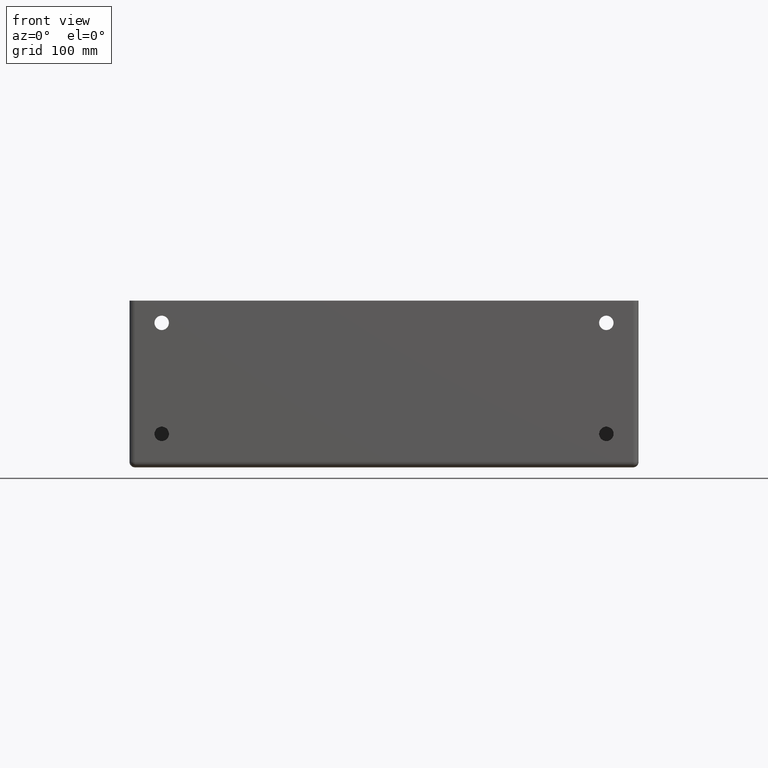
[diagram: clean part render]
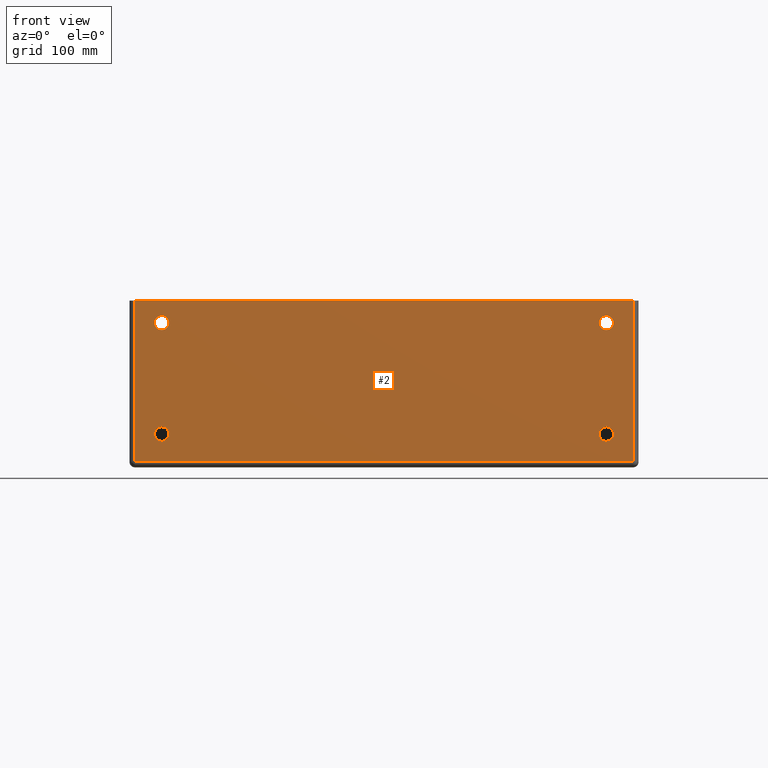
[diagram: same view with one face highlighted and labeled with its STEP entity id]
A machine part, front view. The second image highlights one B-rep face of the part: STEP entity #2.
In plain terms, the highlighted planar face has unit normal (-0, 1, 0).
Its self-contained STEP definition (entity closure, byte-faithful):
#2 = ADVANCED_FACE ( 'NONE', ( #1675, #1679, #1676, #1428, #1677 ), #1774, .F. ) ;
#75 = EDGE_CURVE ( 'NONE', #1847, #1846, #829, .T. ) ;
#76 = EDGE_CURVE ( 'NONE', #1846, #1845, #831, .T. ) ;
#77 = EDGE_CURVE ( 'NONE', #1845, #1813, #835, .T. ) ;
#78 = EDGE_CURVE ( 'NONE', #1813, #1847, #837, .T. ) ;
#90 = AXIS2_PLACEMENT_3D ( 'NONE', #1145, #1146, #1147 ) ;
#97 = AXIS2_PLACEMENT_3D ( 'NONE', #686, #687, #688 ) ;
#98 = AXIS2_PLACEMENT_3D ( 'NONE', #689, #690, #691 ) ;
#99 = AXIS2_PLACEMENT_3D ( 'NONE', #694, #695, #696 ) ;
#100 = AXIS2_PLACEMENT_3D ( 'NONE', #697, #698, #699 ) ;
#102 = AXIS2_PLACEMENT_3D ( 'NONE', #707, #708, #709 ) ;
#305 = EDGE_CURVE ( 'NONE', #1850, #1863, #922, .T. ) ;
#357 = CARTESIAN_POINT ( 'NONE',  ( -223.9999999999998900, -1.836909530733565600E-014, 150.0000000000000000 ) ) ;
#378 = CARTESIAN_POINT ( 'NONE',  ( 200.0000000000000000, -1.512388846970640600E-014, 123.5000000000003700 ) ) ;
#385 = CARTESIAN_POINT ( 'NONE',  ( -200.0000000000000000, -4.469813191451470300E-015, 36.49999999999829500 ) ) ;
#392 = CARTESIAN_POINT ( 'NONE',  ( 224.0000000000000000, -1.836909530733565600E-014, 150.0000000000000000 ) ) ;
#393 = CARTESIAN_POINT ( 'NONE',  ( 224.0000000000000000, -6.123031769111885300E-016, 4.999999999999998200 ) ) ;
#394 = CARTESIAN_POINT ( 'NONE',  ( -224.0000000000000000, -6.123031769111885300E-016, 4.999999999999998200 ) ) ;
#397 = CARTESIAN_POINT ( 'NONE',  ( -200.0000000000003400, -1.671587672967511500E-014, 136.4999999999972400 ) ) ;
#399 = CARTESIAN_POINT ( 'NONE',  ( -200.0000000000000000, -2.877824931482484000E-015, 23.49999999999915400 ) ) ;
#410 = CARTESIAN_POINT ( 'NONE',  ( -200.0000000000003400, -1.512388846970602200E-014, 123.4999999999972100 ) ) ;
#416 = CARTESIAN_POINT ( 'NONE',  ( 200.0000000000000000, -1.671587672967541500E-014, 136.4999999999997200 ) ) ;
#418 = CARTESIAN_POINT ( 'NONE',  ( 200.0000000000000000, -4.469813191451678600E-015, 36.50000000000002100 ) ) ;
#419 = CARTESIAN_POINT ( 'NONE',  ( 200.0000000000000000, -2.877824931482585000E-015, 23.49999999999998200 ) ) ;
#464 = EDGE_CURVE ( 'NONE', #1871, #1872, #929, .T. ) ;
#494 = EDGE_CURVE ( 'NONE', #1838, #1852, #972, .T. ) ;
#523 = EDGE_CURVE ( 'NONE', #1863, #1850, #1031, .T. ) ;
#524 = EDGE_CURVE ( 'NONE', #1831, #1869, #1032, .T. ) ;
#525 = EDGE_CURVE ( 'NONE', #1852, #1838, #1033, .T. ) ;
#526 = EDGE_CURVE ( 'NONE', #1872, #1871, #1034, .T. ) ;
#530 = EDGE_CURVE ( 'NONE', #1869, #1831, #1040, .T. ) ;
#569 = AXIS2_PLACEMENT_3D ( 'NONE', #1800, #1778, #1791 ) ;
#686 = CARTESIAN_POINT ( 'NONE',  ( -200.0000000000003400, -1.591988259969057000E-014, 129.9999999999972100 ) ) ;
#687 = DIRECTION ( 'NONE',  ( 0.0000000000000000000, -1.000000000000000000, -1.224606353822377500E-016 ) ) ;
#688 = DIRECTION ( 'NONE',  ( 0.0000000000000000000, 1.224606353822376800E-016, -1.000000000000000000 ) ) ;
#689 = CARTESIAN_POINT ( 'NONE',  ( 200.0000000000000000, -1.591988259969091100E-014, 130.0000000000000300 ) ) ;
#690 = DIRECTION ( 'NONE',  ( 0.0000000000000000000, -1.000000000000000000, -1.224606353822377500E-016 ) ) ;
#691 = DIRECTION ( 'NONE',  ( 0.0000000000000000000, 1.224606353822378200E-016, -1.000000000000000000 ) ) ;
#694 = CARTESIAN_POINT ( 'NONE',  ( -200.0000000000000000, -3.673819061466976400E-015, 29.99999999999872500 ) ) ;
#695 = DIRECTION ( 'NONE',  ( 0.0000000000000000000, -1.000000000000000000, -1.224606353822377500E-016 ) ) ;
#696 = DIRECTION ( 'NONE',  ( 0.0000000000000000000, 1.224606353822377000E-016, -1.000000000000000000 ) ) ;
#697 = CARTESIAN_POINT ( 'NONE',  ( 200.0000000000000000, -3.673819061467132600E-015, 30.00000000000000000 ) ) ;
#698 = DIRECTION ( 'NONE',  ( 0.0000000000000000000, -1.000000000000000000, -1.224606353822377500E-016 ) ) ;
#699 = DIRECTION ( 'NONE',  ( 0.0000000000000000000, 1.224606353822377500E-016, -1.000000000000000000 ) ) ;
#707 = CARTESIAN_POINT ( 'NONE',  ( 200.0000000000000000, -1.591988259969091100E-014, 130.0000000000000300 ) ) ;
#708 = DIRECTION ( 'NONE',  ( 0.0000000000000000000, -1.000000000000000000, -1.224606353822377500E-016 ) ) ;
#709 = DIRECTION ( 'NONE',  ( 0.0000000000000000000, 1.224606353822378200E-016, -1.000000000000000000 ) ) ;
#818 = VECTOR ( 'NONE', #1310, 1000.000000000000000 ) ;
#829 = LINE ( 'NONE', #1311, #818 ) ;
#831 = LINE ( 'NONE', #1312, #836 ) ;
#835 = LINE ( 'NONE', #1316, #838 ) ;
#836 = VECTOR ( 'NONE', #1315, 1000.000000000000000 ) ;
#837 = LINE ( 'NONE', #1318, #840 ) ;
#838 = VECTOR ( 'NONE', #1317, 1000.000000000000000 ) ;
#840 = VECTOR ( 'NONE', #1319, 1000.000000000000000 ) ;
#922 = CIRCLE ( 'NONE', #1553, 6.500000000000019500 ) ;
#929 = CIRCLE ( 'NONE', #1556, 6.500000000000016000 ) ;
#972 = CIRCLE ( 'NONE', #90, 6.499999999999571900 ) ;
#1031 = CIRCLE ( 'NONE', #97, 6.500000000000019500 ) ;
#1032 = CIRCLE ( 'NONE', #98, 6.499999999999658900 ) ;
#1033 = CIRCLE ( 'NONE', #99, 6.499999999999571900 ) ;
#1034 = CIRCLE ( 'NONE', #100, 6.500000000000016000 ) ;
#1040 = CIRCLE ( 'NONE', #102, 6.499999999999658900 ) ;
#1062 = CARTESIAN_POINT ( 'NONE',  ( -200.0000000000003400, -1.591988259969057000E-014, 129.9999999999972100 ) ) ;
#1063 = DIRECTION ( 'NONE',  ( 0.0000000000000000000, -1.000000000000000000, -1.224606353822377500E-016 ) ) ;
#1064 = DIRECTION ( 'NONE',  ( 0.0000000000000000000, 1.224606353822376800E-016, -1.000000000000000000 ) ) ;
#1077 = CARTESIAN_POINT ( 'NONE',  ( 200.0000000000000000, -3.673819061467132600E-015, 30.00000000000000000 ) ) ;
#1078 = DIRECTION ( 'NONE',  ( 0.0000000000000000000, -1.000000000000000000, -1.224606353822377500E-016 ) ) ;
#1079 = DIRECTION ( 'NONE',  ( 0.0000000000000000000, 1.224606353822377500E-016, -1.000000000000000000 ) ) ;
#1145 = CARTESIAN_POINT ( 'NONE',  ( -200.0000000000000000, -3.673819061466976400E-015, 29.99999999999872500 ) ) ;
#1146 = DIRECTION ( 'NONE',  ( 0.0000000000000000000, -1.000000000000000000, -1.224606353822377500E-016 ) ) ;
#1147 = DIRECTION ( 'NONE',  ( 0.0000000000000000000, 1.224606353822377000E-016, -1.000000000000000000 ) ) ;
#1310 = DIRECTION ( 'NONE',  ( 1.000000000000000000, -0.0000000000000000000, -0.0000000000000000000 ) ) ;
#1311 = CARTESIAN_POINT ( 'NONE',  ( 229.0000000000000000, -6.123031769111885300E-016, 4.999999999999998200 ) ) ;
#1312 = CARTESIAN_POINT ( 'NONE',  ( 224.0000000000000000, -1.836909530733565900E-014, 150.0000000000000000 ) ) ;
#1315 = DIRECTION ( 'NONE',  ( -0.0000000000000000000, -1.224606353822377500E-016, 1.000000000000000000 ) ) ;
#1316 = CARTESIAN_POINT ( 'NONE',  ( 229.0000000000000000, -1.836909530733565600E-014, 150.0000000000000000 ) ) ;
#1317 = DIRECTION ( 'NONE',  ( -1.000000000000000000, -0.0000000000000000000, -0.0000000000000000000 ) ) ;
#1318 = CARTESIAN_POINT ( 'NONE',  ( -224.0000000000000000, 0.0000000000000000000, 0.0000000000000000000 ) ) ;
#1319 = DIRECTION ( 'NONE',  ( 0.0000000000000000000, 1.224606353822377500E-016, -1.000000000000000000 ) ) ;
#1409 = ORIENTED_EDGE ( 'NONE', *, *, #78, .T. ) ;
#1428 = FACE_BOUND ( 'NONE', #1673, .T. ) ;
#1553 = AXIS2_PLACEMENT_3D ( 'NONE', #1062, #1063, #1064 ) ;
#1556 = AXIS2_PLACEMENT_3D ( 'NONE', #1077, #1078, #1079 ) ;
#1644 = EDGE_LOOP ( 'NONE', ( #1945, #1948 ) ) ;
#1673 = EDGE_LOOP ( 'NONE', ( #1950, #1944 ) ) ;
#1675 = FACE_BOUND ( 'NONE', #1916, .T. ) ;
#1676 = FACE_BOUND ( 'NONE', #2115, .T. ) ;
#1677 = FACE_OUTER_BOUND ( 'NONE', #2116, .T. ) ;
#1679 = FACE_BOUND ( 'NONE', #1644, .T. ) ;
#1774 = PLANE ( 'NONE',  #569 ) ;
#1778 = DIRECTION ( 'NONE',  ( -0.0000000000000000000, 1.000000000000000000, 1.224606353822377500E-016 ) ) ;
#1791 = DIRECTION ( 'NONE',  ( 0.0000000000000000000, -1.224606353822377500E-016, 1.000000000000000000 ) ) ;
#1800 = CARTESIAN_POINT ( 'NONE',  ( 229.0000000000000000, 0.0000000000000000000, 0.0000000000000000000 ) ) ;
#1813 = VERTEX_POINT ( 'NONE', #357 ) ;
#1831 = VERTEX_POINT ( 'NONE', #378 ) ;
#1838 = VERTEX_POINT ( 'NONE', #385 ) ;
#1845 = VERTEX_POINT ( 'NONE', #392 ) ;
#1846 = VERTEX_POINT ( 'NONE', #393 ) ;
#1847 = VERTEX_POINT ( 'NONE', #394 ) ;
#1850 = VERTEX_POINT ( 'NONE', #397 ) ;
#1852 = VERTEX_POINT ( 'NONE', #399 ) ;
#1863 = VERTEX_POINT ( 'NONE', #410 ) ;
#1869 = VERTEX_POINT ( 'NONE', #416 ) ;
#1871 = VERTEX_POINT ( 'NONE', #418 ) ;
#1872 = VERTEX_POINT ( 'NONE', #419 ) ;
#1916 = EDGE_LOOP ( 'NONE', ( #1946, #1951 ) ) ;
#1944 = ORIENTED_EDGE ( 'NONE', *, *, #464, .F. ) ;
#1945 = ORIENTED_EDGE ( 'NONE', *, *, #524, .F. ) ;
#1946 = ORIENTED_EDGE ( 'NONE', *, *, #523, .F. ) ;
#1947 = ORIENTED_EDGE ( 'NONE', *, *, #525, .F. ) ;
#1948 = ORIENTED_EDGE ( 'NONE', *, *, #530, .F. ) ;
#1949 = ORIENTED_EDGE ( 'NONE', *, *, #75, .T. ) ;
#1950 = ORIENTED_EDGE ( 'NONE', *, *, #526, .F. ) ;
#1951 = ORIENTED_EDGE ( 'NONE', *, *, #305, .F. ) ;
#1952 = ORIENTED_EDGE ( 'NONE', *, *, #77, .T. ) ;
#1953 = ORIENTED_EDGE ( 'NONE', *, *, #494, .F. ) ;
#1954 = ORIENTED_EDGE ( 'NONE', *, *, #76, .T. ) ;
#2115 = EDGE_LOOP ( 'NONE', ( #1947, #1953 ) ) ;
#2116 = EDGE_LOOP ( 'NONE', ( #1949, #1954, #1952, #1409 ) ) ;